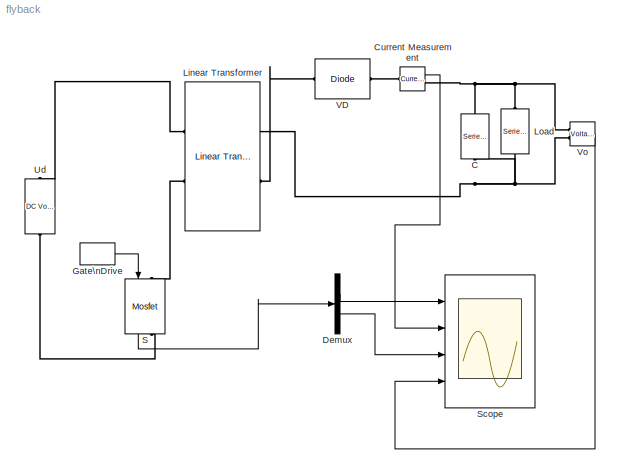
MODEL flyback
KIND model
BLOCK [Reference] C  REF=powerlib/Elements/Series RLC Branch
  Capacitance = 1e-5
  Inductance = 0
  LConnTagsString = __new0
  LeftPortType = p1
  Measurements = None
  PhysicalDomain = powersysdomain
  Ports = [0, 0, 0, 0, 0, 1, 1]
  RConnTagsString = __new0
  Resistance = 0
  RightPortType = p1
  SourceBlock = powerlib/Elements/Series RLC Branch
  SourceType = Series RLC Branch
  SubClassName = unknown
BLOCK [Reference] Current Measurement  REF=powerlib/Measurements/Current Measurement
  OutputType = Complex
  PSBequivalent = 0
  PhasorSimulation = off
  Ports = [0, 1, 0, 0, 0, 1, 1]
  ShowPortLabels = on
  SourceBlock = powerlib/Measurements/Current Measurement
  SourceType = Current Measurement
BLOCK [Demux] Demux
  DisplayOption = bar
  Outputs = 2
  Ports = [1, 2]
BLOCK [DiscretePulseGenerator] Gate\nDrive
  Period = 0.00005
  Ports = [0, 1]
  PulseType = Time based
  PulseWidth = 30
BLOCK [Reference] Linear Transformer  REF=powerlib/Elements/Linear Transformer
  LConnTagsString = a|b
  LeftPortType = p1
  Measurements = Magnetization current
  NominalPower = [500 20e3 ]
  PhysicalDomain = powersysdomain
  Ports = [0, 0, 0, 0, 0, 2, 2]
  RConnTagsString = A|B
  RightPortType = p1
  RmLm = [ 100 1]
  SourceBlock = powerlib/Elements/Linear Transformer
  SourceType = Linear Transformer
  SubClassName = unknown
  ThreeWindings = off
  winding1 = [ 100  0.002  0.00001 ]
  winding2 = [ 100  0.002  0.00001 ]
  winding3 = [ 100 0.005 0.001 ]
BLOCK [Reference] Load  REF=powerlib/Elements/Series RLC Branch
  Capacitance = inf
  Inductance = 0
  LConnTagsString = __new0
  LeftPortType = p1
  Measurements = Branch voltage
  PhysicalDomain = powersysdomain
  Ports = [0, 0, 0, 0, 0, 1, 1]
  RConnTagsString = __new0
  Resistance = 100
  RightPortType = p1
  SourceBlock = powerlib/Elements/Series RLC Branch
  SourceType = Series RLC Branch
  SubClassName = unknown
BLOCK [Reference] S  REF=powerlib/Power\nElectronics/Mosfet
  Cs = 1e-9
  IC = 0
  Lon = 1e-9
  Measurements = on
  Ports = [1, 1, 0, 0, 0, 1, 1]
  Rd = .01
  Ron = 0.01
  Rs = 30
  ShowPortLabels = on
  SourceBlock = powerlib/Power\nElectronics/Mosfet
  SourceType = Mosfet
BLOCK [Scope] Scope
  DataFormat = StructureWithTime
  NumInputPorts = 4
  Ports = [4]
  SampleTime = 2e-4
  TimeRange = 0.0005
  YMax = 20~20~300~200
  YMin = 0~0~0~0
  ZoomMode = xonly
BLOCK [Reference] Ud  REF=powerlib/Electrical\nSources/DC Voltage Source
  Amplitude = 100
  Measurements = None
  Ports = [0, 0, 0, 0, 0, 1, 1]
  ShowPortLabels = on
  SourceBlock = powerlib/Electrical\nSources/DC Voltage Source
  SourceType = DC Voltage Source
BLOCK [Reference] VD  REF=powerlib/Power\nElectronics/Diode
  Cs = 1e-9
  IC = 0
  Lon = 0
  Measurements = off
  Ports = [0, 0, 0, 0, 0, 1, 1]
  Ron = 0.001
  Rs = 100
  ShowPortLabels = on
  SourceBlock = powerlib/Power\nElectronics/Diode
  SourceType = Diode
  Vf = 0
BLOCK [Reference] Vo   REF=powerlib/Measurements/Voltage Measurement
  OutputType = Complex
  PSBequivalent = 0
  PhasorSimulation = off
  Ports = [0, 1, 0, 0, 0, 2]
  ShowPortLabels = on
  SourceBlock = powerlib/Measurements/Voltage Measurement
  SourceType = Voltage Measurement
LINE Current Measurement:1 -> Scope:2
LINE Demux:1 -> Scope:1
LINE Demux:2 -> Scope:3
LINE Gate\nDrive:1 -> S:1
LINE S:1 -> Demux:1
LINE Vo :1 -> Scope:4
PNET net1: C:LConn1 -- Linear Transformer:RConn1 -- Load:RConn1 -- Vo :LConn2
PNET net2: C:RConn1 -- Current Measurement:RConn1 -- Load:LConn1 -- Vo :LConn1
PLINE Current Measurement:LConn1 -- VD:RConn1
PLINE Linear Transformer:LConn1 -- Ud:RConn1
PLINE Linear Transformer:LConn2 -- S:LConn1
PLINE Linear Transformer:RConn2 -- VD:LConn1
PLINE S:RConn1 -- Ud:LConn1
note: PNET lines group multi-terminal physical nets as a canonical sorted terminal list (undirected conserving connections); 2-terminal nets keep the pairwise PLINE form
